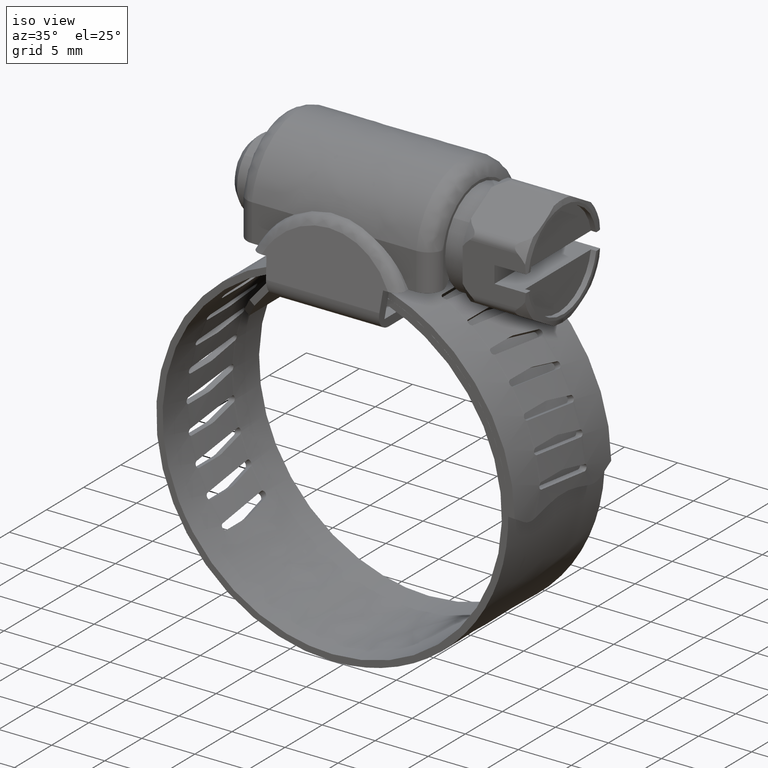
[diagram: clean part render]
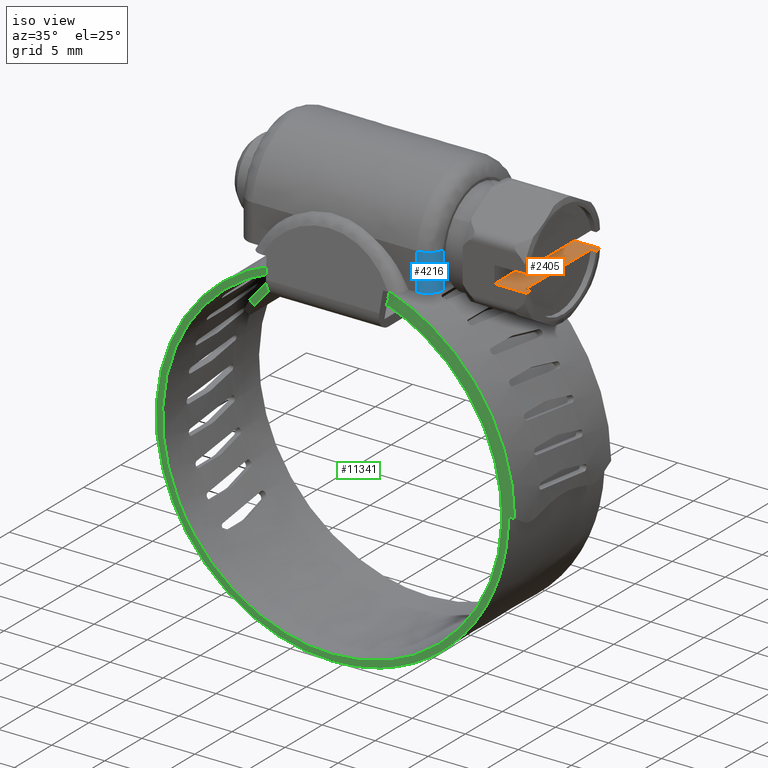
[diagram: same view with three faces highlighted in distinct colors, each labeled with its STEP entity id]
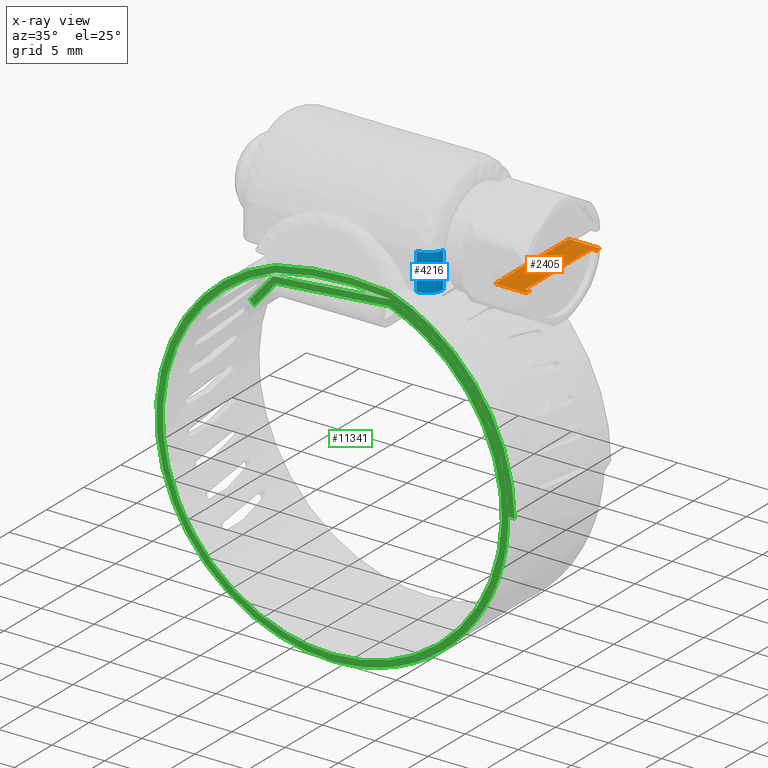
[diagram: x-ray of the same camera — body ghosted, the three highlighted faces saturated]
A machine part, iso view with three faces highlighted in distinct colors.
The next image is the same camera in x-ray (body ghosted, the three faces saturated) — at least one of them is partly hidden behind the body in this view.
Their STEP definitions:

[orange] entity #2405 — the highlighted face is a freeform B-spline surface patch.
#2063=CARTESIAN_POINT('',(17.206999503102100,5.0,15.027121000000200));
#2064=VERTEX_POINT('',#2063);
#2072=CARTESIAN_POINT('',(17.250000000000000,4.705992249096360,15.027121000000200));
#2073=VERTEX_POINT('',#2072);
#2074=CARTESIAN_POINT('',(17.206999503102100,5.0,15.027121000000200));
#2075=CARTESIAN_POINT('',(17.235509469103619,4.904777805722434,15.027121000000150));
#2076=CARTESIAN_POINT('',(17.250036306983880,4.805389500258055,15.027121000000230));
#2077=CARTESIAN_POINT('',(17.250000000000000,4.705992249096360,15.027121000000200));
#2078=B_SPLINE_CURVE_WITH_KNOTS('',3,(#2074,#2075,#2076,#2077),.UNSPECIFIED.,.F.,.U.,(4,4),(2.046325E-009,0.298189102501080),.UNSPECIFIED.);
#2079=EDGE_CURVE('',#2064,#2073,#2078,.T.);
#2081=CARTESIAN_POINT('',(17.250000000000000,-4.705992249096360,15.027121000000200));
#2082=VERTEX_POINT('',#2081);
#2106=CARTESIAN_POINT('',(17.206999503105251,-4.999999999989731,15.027121000000200));
#2107=VERTEX_POINT('',#2106);
#2108=CARTESIAN_POINT('',(17.250000000000000,-4.705992249096360,15.027121000000200));
#2109=CARTESIAN_POINT('',(17.250048921051491,-4.805390154629565,15.027121000000200));
#2110=CARTESIAN_POINT('',(17.235521455894119,-4.904780870387029,15.027121000000220));
#2111=CARTESIAN_POINT('',(17.206999503105251,-4.999999999989731,15.027121000000200));
#2112=B_SPLINE_CURVE_WITH_KNOTS('',3,(#2108,#2109,#2110,#2111),.UNSPECIFIED.,.F.,.U.,(4,4),(2.053393E-009,0.298190934497048),.UNSPECIFIED.);
#2113=EDGE_CURVE('',#2082,#2107,#2112,.T.);
#2285=CARTESIAN_POINT('',(16.750000000000000,-4.428317965096929,15.027121000000200));
#2286=VERTEX_POINT('',#2285);
#2287=CARTESIAN_POINT('',(17.250000000000000,-4.428317965096929,15.027121000000200));
#2288=VERTEX_POINT('',#2287);
#2289=CARTESIAN_POINT('',(16.750000000000000,-4.428317965096929,15.027121000000200));
#2290=CARTESIAN_POINT('',(17.250000000000000,-4.428317965096929,15.027121000000200));
#2291=QUASI_UNIFORM_CURVE('',1,(#2289,#2290),.UNSPECIFIED.,.F.,.U.);
#2292=EDGE_CURVE('',#2286,#2288,#2291,.T.);
#2294=CARTESIAN_POINT('',(17.250000000000000,4.428317965096929,15.027121000000200));
#2295=VERTEX_POINT('',#2294);
#2318=CARTESIAN_POINT('',(16.750000000000000,4.428317965096929,15.027121000000200));
#2319=VERTEX_POINT('',#2318);
#2320=CARTESIAN_POINT('',(17.250000000000000,4.428317965096929,15.027121000000200));
#2321=CARTESIAN_POINT('',(16.750000000000000,4.428317965096929,15.027121000000200));
#2322=QUASI_UNIFORM_CURVE('',1,(#2320,#2321),.UNSPECIFIED.,.F.,.U.);
#2323=EDGE_CURVE('',#2295,#2319,#2322,.T.);
#2356=CARTESIAN_POINT('',(16.750000000000000,-4.428317965096929,15.027121000000200));
#2357=CARTESIAN_POINT('',(16.750000000000000,4.428317965096929,15.027121000000200));
#2358=QUASI_UNIFORM_CURVE('',1,(#2356,#2357),.UNSPECIFIED.,.F.,.U.);
#2359=EDGE_CURVE('',#2286,#2319,#2358,.T.);
#2364=CARTESIAN_POINT('',(14.100150005814580,-5.499499980618060,15.027121000000200));
#2365=CARTESIAN_POINT('',(17.399850074651692,-5.499499980618060,15.027121000000200));
#2366=CARTESIAN_POINT('',(14.100150005814580,5.499500248838961,15.027121000000200));
#2367=CARTESIAN_POINT('',(17.399850074651692,5.499500248838961,15.027121000000200));
#2368=B_SPLINE_SURFACE_WITH_KNOTS('',1,1,((#2364,#2366),(#2365,#2367)),.UNSPECIFIED.,.F.,.F.,.U.,(2,2),(2,2),(0.0,3.299700068837110),(0.0,10.999000229457019),.UNSPECIFIED.);
#2369=ORIENTED_EDGE('',*,*,#2113,.F.);
#2370=CARTESIAN_POINT('',(17.250000000000000,-4.428317965096929,15.027121000000200));
#2371=CARTESIAN_POINT('',(17.250000000000000,-4.705992249096360,15.027121000000200));
#2372=QUASI_UNIFORM_CURVE('',1,(#2370,#2371),.UNSPECIFIED.,.F.,.U.);
#2373=EDGE_CURVE('',#2288,#2082,#2372,.T.);
#2374=ORIENTED_EDGE('',*,*,#2373,.F.);
#2375=ORIENTED_EDGE('',*,*,#2292,.F.);
#2376=ORIENTED_EDGE('',*,*,#2359,.T.);
#2377=ORIENTED_EDGE('',*,*,#2323,.F.);
#2378=CARTESIAN_POINT('',(17.250000000000000,4.705992249096360,15.027121000000200));
#2379=CARTESIAN_POINT('',(17.250000000000000,4.428317965096929,15.027121000000200));
#2380=QUASI_UNIFORM_CURVE('',1,(#2378,#2379),.UNSPECIFIED.,.F.,.U.);
#2381=EDGE_CURVE('',#2073,#2295,#2380,.T.);
#2382=ORIENTED_EDGE('',*,*,#2381,.F.);
#2383=ORIENTED_EDGE('',*,*,#2079,.F.);
#2384=CARTESIAN_POINT('',(14.250000000000000,5.0,15.027121000000200));
#2385=VERTEX_POINT('',#2384);
#2386=CARTESIAN_POINT('',(14.250000000000000,5.0,15.027121000000200));
#2387=CARTESIAN_POINT('',(17.206999503102100,5.0,15.027121000000200));
#2388=QUASI_UNIFORM_CURVE('',1,(#2386,#2387),.UNSPECIFIED.,.F.,.U.);
#2389=EDGE_CURVE('',#2385,#2064,#2388,.T.);
#2390=ORIENTED_EDGE('',*,*,#2389,.F.);
#2391=CARTESIAN_POINT('',(14.250000000000000,-5.0,15.027121000000200));
#2392=VERTEX_POINT('',#2391);
#2393=CARTESIAN_POINT('',(14.250000000000000,5.0,15.027121000000200));
#2394=CARTESIAN_POINT('',(14.250000000000000,-5.0,15.027121000000200));
#2395=QUASI_UNIFORM_CURVE('',1,(#2393,#2394),.UNSPECIFIED.,.F.,.U.);
#2396=EDGE_CURVE('',#2385,#2392,#2395,.T.);
#2397=ORIENTED_EDGE('',*,*,#2396,.T.);
#2398=CARTESIAN_POINT('',(14.250000000000000,-5.0,15.027121000000200));
#2399=CARTESIAN_POINT('',(17.206999503105251,-4.999999999989731,15.027121000000200));
#2400=QUASI_UNIFORM_CURVE('',1,(#2398,#2399),.UNSPECIFIED.,.F.,.U.);
#2401=EDGE_CURVE('',#2392,#2107,#2400,.T.);
#2402=ORIENTED_EDGE('',*,*,#2401,.T.);
#2403=EDGE_LOOP('',(#2369,#2374,#2375,#2376,#2377,#2382,#2383,#2390,#2397,#2402));
#2404=FACE_OUTER_BOUND('',#2403,.T.);
#2405=ADVANCED_FACE('',(#2404),#2368,.T.);

[blue] entity #4216 — the highlighted face is a freeform B-spline surface patch.
#4094=CARTESIAN_POINT('',(7.750000000000000,-6.249999633170980,16.577121365332999));
#4095=VERTEX_POINT('',#4094);
#4096=CARTESIAN_POINT('',(9.250000000000000,-4.750000000000000,16.474846138207202));
#4097=VERTEX_POINT('',#4096);
#4098=CARTESIAN_POINT('',(7.750000000000000,-6.249999633170980,16.577121365332999));
#4099=CARTESIAN_POINT('',(7.909730764666414,-6.249878331808185,16.577495060058379));
#4100=CARTESIAN_POINT('',(8.173783550736472,-6.207020607309248,16.575102217856710));
#4101=CARTESIAN_POINT('',(8.494594363132128,-6.062279308114920,16.565654605634421));
#4102=CARTESIAN_POINT('',(8.721257639045223,-5.902611492189811,16.554928223330101));
#4103=CARTESIAN_POINT('',(8.921592669599393,-5.702295459049872,16.541270020145120));
#4104=CARTESIAN_POINT('',(9.072406799178326,-5.476537966144156,16.525697734799660));
#4105=CARTESIAN_POINT('',(9.210373101187990,-5.154436138295711,16.503295044750210));
#4106=CARTESIAN_POINT('',(9.250316627832087,-4.915471599189417,16.486525323357281));
#4107=CARTESIAN_POINT('',(9.250000000000000,-4.750000000000000,16.474846138207202));
#4108=B_SPLINE_CURVE_WITH_KNOTS('',3,(#4098,#4099,#4100,#4101,#4102,#4103,#4104,#4105,#4106,#4107),.UNSPECIFIED.,.F.,.U.,(4,1,1,1,1,1,1,4),(0.000000052796059,0.479166655590116,0.792473659713101,1.050489125535329,1.308498353158782,1.640229492154335,1.861387593611156,2.358983874720540),.UNSPECIFIED.);
#4109=EDGE_CURVE('',#4095,#4097,#4108,.T.);
#4163=CARTESIAN_POINT('',(9.249485987463336,-4.710734577538190,12.989620990866880));
#4164=CARTESIAN_POINT('',(9.249485987463336,-4.710734577538190,16.666808874694649));
#4165=CARTESIAN_POINT('',(9.292738390249394,-6.362477200832084,12.989620990866879));
#4166=CARTESIAN_POINT('',(9.292738390249394,-6.362477200832084,16.666808874694649));
#4167=CARTESIAN_POINT('',(7.644519886561025,-6.246286719071219,12.989620990866880));
#4168=CARTESIAN_POINT('',(7.644519886561025,-6.246286719071219,16.666808874694656));
#4176=(BOUNDED_SURFACE()B_SPLINE_SURFACE(1,2,((#4163,#4165,#4167),(#4164,#4166,#4168)),.UNSPECIFIED.,.F.,.F.,.U.)B_SPLINE_SURFACE_WITH_KNOTS((2,2),(3,3),(0.0,3.677187883827772),(0.0,2.656713516132551),.UNSPECIFIED.)GEOMETRIC_REPRESENTATION_ITEM()RATIONAL_B_SPLINE_SURFACE(((1.0,0.670944223154768,0.996392648609106),(1.0,0.670944223154768,0.996392648609106)))REPRESENTATION_ITEM('')SURFACE());
#4177=CARTESIAN_POINT('',(9.250000000000000,-4.750000000000000,13.091078194673781));
#4178=VERTEX_POINT('',#4177);
#4179=CARTESIAN_POINT('',(9.240731502966250,-4.916492000000000,13.077121000000201));
#4180=VERTEX_POINT('',#4179);
#4181=CARTESIAN_POINT('',(9.250000000000000,-4.750000000000000,13.091078194673781));
#4182=CARTESIAN_POINT('',(9.250039077149744,-4.805093028401785,13.081784339118100));
#4183=CARTESIAN_POINT('',(9.246930418808336,-4.860964311131885,13.077098096389580));
#4184=CARTESIAN_POINT('',(9.240731502966250,-4.916492000000000,13.077121000000201));
#4185=B_SPLINE_CURVE_WITH_KNOTS('',3,(#4181,#4182,#4183,#4184),.UNSPECIFIED.,.F.,.U.,(4,4),(1.043656E-009,0.167619304962963),.UNSPECIFIED.);
#4186=EDGE_CURVE('',#4178,#4180,#4185,.T.);
#4187=ORIENTED_EDGE('',*,*,#4186,.F.);
#4188=CARTESIAN_POINT('',(9.250000000000000,-4.750000000000000,16.474846138207202));
#4189=CARTESIAN_POINT('',(9.250000000000000,-4.750000000000000,13.091078194673781));
#4190=QUASI_UNIFORM_CURVE('',1,(#4188,#4189),.UNSPECIFIED.,.F.,.U.);
#4191=EDGE_CURVE('',#4097,#4178,#4190,.T.);
#4192=ORIENTED_EDGE('',*,*,#4191,.F.);
#4193=ORIENTED_EDGE('',*,*,#4109,.F.);
#4194=CARTESIAN_POINT('',(7.750000000000000,-6.250000000000000,13.077121000000201));
#4195=VERTEX_POINT('',#4194);
#4196=CARTESIAN_POINT('',(7.750000000000000,-6.250000000000000,13.077121000000201));
#4197=CARTESIAN_POINT('',(7.750000000000000,-6.249999633170980,16.577121365332999));
#4198=QUASI_UNIFORM_CURVE('',1,(#4196,#4197),.UNSPECIFIED.,.F.,.U.);
#4199=EDGE_CURVE('',#4195,#4095,#4198,.T.);
#4200=ORIENTED_EDGE('',*,*,#4199,.F.);
#4201=CARTESIAN_POINT('',(9.240731502966250,-4.916492000000000,13.077121000000201));
#4202=CARTESIAN_POINT('',(9.225594366164010,-5.052491477255182,13.077121000000210));
#4203=CARTESIAN_POINT('',(9.167578751079796,-5.281197162874862,13.077121000000190));
#4204=CARTESIAN_POINT('',(9.018921830564453,-5.565461022294991,13.077121000000179));
#4205=CARTESIAN_POINT('',(8.849591927735498,-5.781729370915818,13.077121000000220));
#4206=CARTESIAN_POINT('',(8.661837392564603,-5.949676024676418,13.077121000000190));
#4207=CARTESIAN_POINT('',(8.434814690697916,-6.093421267172399,13.077121000000201));
#4208=CARTESIAN_POINT('',(8.137674979258312,-6.214785392311871,13.077121000000210));
#4209=CARTESIAN_POINT('',(7.892541274488667,-6.250055119327778,13.077121000000201));
#4210=CARTESIAN_POINT('',(7.750000000000000,-6.250000000000000,13.077121000000201));
#4211=B_SPLINE_CURVE_WITH_KNOTS('',3,(#4201,#4202,#4203,#4204,#4205,#4206,#4207,#4208,#4209,#4210),.UNSPECIFIED.,.F.,.U.,(4,1,1,1,1,1,1,4),(0.000000044337971,0.410503455625873,0.701283733955715,0.957857635291427,1.231513497130508,1.453876334453422,1.761760267115205,2.189370583337010),.UNSPECIFIED.);
#4212=EDGE_CURVE('',#4180,#4195,#4211,.T.);
#4213=ORIENTED_EDGE('',*,*,#4212,.F.);
#4214=EDGE_LOOP('',(#4187,#4192,#4193,#4200,#4213));
#4215=FACE_OUTER_BOUND('',#4214,.T.);
#4216=ADVANCED_FACE('',(#4215),#4176,.T.);

[green] entity #11341 — the highlighted face is a freeform B-spline surface patch.
#8328=CARTESIAN_POINT('',(-7.791181798298579,-6.500000000000000,8.347631388852189));
#8329=VERTEX_POINT('',#8328);
#8342=CARTESIAN_POINT('',(-7.334361413863970,-6.500000000000250,7.958639061498129));
#8343=VERTEX_POINT('',#8342);
#8349=CARTESIAN_POINT('',(-7.791181798298579,-6.500000000000000,8.347631388852189));
#8350=CARTESIAN_POINT('',(-7.334361413863970,-6.500000000000250,7.958639061498129));
#8351=QUASI_UNIFORM_CURVE('',1,(#8349,#8350),.UNSPECIFIED.,.F.,.U.);
#8352=EDGE_CURVE('',#8329,#8343,#8351,.T.);
#8376=CARTESIAN_POINT('',(-5.572247165430700,-6.500000000000000,10.953473794129900));
#8377=VERTEX_POINT('',#8376);
#8378=CARTESIAN_POINT('',(-5.572247165430700,-6.500000000000000,10.953473794129900));
#8379=CARTESIAN_POINT('',(-7.791181798298579,-6.500000000000000,8.347631388852189));
#8380=QUASI_UNIFORM_CURVE('',1,(#8378,#8379),.UNSPECIFIED.,.F.,.U.);
#8381=EDGE_CURVE('',#8377,#8329,#8380,.T.);
#8396=CARTESIAN_POINT('',(5.428691733681980,-6.500000000000000,11.911233856249240));
#8397=VERTEX_POINT('',#8396);
#8398=CARTESIAN_POINT('',(5.428691733681980,-6.500000000000000,11.911233856249240));
#8399=CARTESIAN_POINT('',(-5.572247165430700,-6.500000000000000,10.953473794129900));
#8400=QUASI_UNIFORM_CURVE('',1,(#8398,#8399),.UNSPECIFIED.,.F.,.U.);
#8401=EDGE_CURVE('',#8397,#8377,#8400,.T.);
#8445=CARTESIAN_POINT('',(-0.013288823278815,-6.500000000000000,-20.375994680938181));
#8446=VERTEX_POINT('',#8445);
#8447=CARTESIAN_POINT('',(-0.013288823278815,-6.500000000000000,-20.375994680938181));
#8448=CARTESIAN_POINT('',(0.806431367803265,-6.500000000000004,-20.376693983167829));
#8449=CARTESIAN_POINT('',(2.233426539291146,-6.499999999999998,-20.271876379137701));
#8450=CARTESIAN_POINT('',(4.378054711637666,-6.500000000000004,-19.832213544916272));
#8451=CARTESIAN_POINT('',(6.194485005057371,-6.500000000000004,-19.218837664334099));
#8452=CARTESIAN_POINT('',(7.759397835748891,-6.499999999999997,-18.475113068337158));
#8453=CARTESIAN_POINT('',(9.304784938885675,-6.500000000000007,-17.566752882438038));
#8454=CARTESIAN_POINT('',(10.789986873649640,-6.499999999999916,-16.451925336573929));
#8455=CARTESIAN_POINT('',(12.292008953255880,-6.499999999999932,-14.987135356127499));
#8456=CARTESIAN_POINT('',(13.520162398128271,-6.500000000000343,-13.476876655412759));
#8457=CARTESIAN_POINT('',(14.622352273293970,-6.499999999999750,-11.726765338134120));
#8458=CARTESIAN_POINT('',(15.457258006659680,-6.500000000000120,-9.933941146299908));
#8459=CARTESIAN_POINT('',(16.112868991961371,-6.500000000000084,-7.941325783754777));
#8460=CARTESIAN_POINT('',(16.559837193321670,-6.499999999999957,-5.671671735344448));
#8461=CARTESIAN_POINT('',(16.639800223342451,-6.500000000000073,-3.570760533964450));
#8462=CARTESIAN_POINT('',(16.489350744930661,-6.499999999999924,-1.693422271203688));
#8463=CARTESIAN_POINT('',(16.194854989567911,-6.500000000000448,0.075929581194763));
#8464=CARTESIAN_POINT('',(15.639109317255031,-6.499999999999440,1.912002790568331));
#8465=CARTESIAN_POINT('',(14.867807845445460,-6.500000000000371,3.664311765782506));
#8466=CARTESIAN_POINT('',(13.991199101996861,-6.499999999999826,5.229204023845340));
#8467=CARTESIAN_POINT('',(12.917727080458089,-6.499999999999996,6.705806046635198));
#8468=CARTESIAN_POINT('',(11.727654913601301,-6.499999999999970,8.006281777172553));
#8469=CARTESIAN_POINT('',(10.331604710557540,-6.500000000000121,9.271972541471293));
#8470=CARTESIAN_POINT('',(8.289337180077407,-6.499999999999846,10.708490960726440));
#8471=CARTESIAN_POINT('',(6.490304881145353,-6.499999999999777,11.544013987446920));
#8472=CARTESIAN_POINT('',(5.428691733681980,-6.500000000000000,11.911233856249240));
#8473=B_SPLINE_CURVE_WITH_KNOTS('',3,(#8447,#8448,#8449,#8450,#8451,#8452,#8453,#8454,#8455,#8456,#8457,#8458,#8459,#8460,#8461,#8462,#8463,#8464,#8465,#8466,#8467,#8468,#8469,#8470,#8471,#8472),.UNSPECIFIED.,.F.,.U.,(4,1,1,1,1,1,1,1,1,1,1,1,1,1,1,1,1,1,1,1,1,1,1,4),(0.000000023376131,2.459158380666885,4.280777629463522,6.557814906029797,8.197259746065591,9.472397940618698,11.931581747682650,13.753199400331381,15.756981716544850,17.760753710808419,19.946705124044851,21.677238096110401,24.045308689251129,26.868818613411690,27.961791121988401,29.692314471448011,32.242585574857621,33.699881434668669,35.430419455720262,37.616360522943062,39.164739888885492,40.713116193422962,43.263382482265669,46.633351800454129),.UNSPECIFIED.);
#8474=EDGE_CURVE('',#8446,#8397,#8473,.T.);
#8476=CARTESIAN_POINT('',(-5.403568536057810,-6.500000000000000,11.919905432693740));
#8477=VERTEX_POINT('',#8476);
#8478=CARTESIAN_POINT('',(-5.403568536057810,-6.500000000000000,11.919905432693740));
#8479=CARTESIAN_POINT('',(-6.035115718634340,-6.499999999999989,11.702501730989590));
#8480=CARTESIAN_POINT('',(-7.356251747863360,-6.500000000000004,11.156476872160971));
#8481=CARTESIAN_POINT('',(-9.256798365550859,-6.500000000000004,10.066172607384971));
#8482=CARTESIAN_POINT('',(-10.966313753431500,-6.499999999999989,8.744811107025498));
#8483=CARTESIAN_POINT('',(-12.301093371323740,-6.500000000000044,7.413139469327751));
#8484=CARTESIAN_POINT('',(-13.416335895158230,-6.500000000000008,6.048236911621512));
#8485=CARTESIAN_POINT('',(-14.388223821997350,-6.499999999999916,4.576336163049805));
#8486=CARTESIAN_POINT('',(-15.115777700032689,-6.500000000000019,3.138124818919907));
#8487=CARTESIAN_POINT('',(-15.713726945869681,-6.499999999999930,1.643467278052422));
#8488=CARTESIAN_POINT('',(-16.099898394798171,-6.499999999999764,0.362339750846856));
#8489=CARTESIAN_POINT('',(-16.423270304070702,-6.499999999999915,-1.214818469182103));
#8490=CARTESIAN_POINT('',(-16.617745289809509,-6.500000000000068,-2.906415811022940));
#8491=CARTESIAN_POINT('',(-16.605550491049041,-6.499999999999973,-4.853639050636892));
#8492=CARTESIAN_POINT('',(-16.386057033032181,-6.500000000000333,-6.572812909122177));
#8493=CARTESIAN_POINT('',(-16.038612212973479,-6.499999999999957,-8.144980053231299));
#8494=CARTESIAN_POINT('',(-15.503958618312950,-6.500000000000004,-9.825531892141592));
#8495=CARTESIAN_POINT('',(-14.689416708443540,-6.500000000000001,-11.594650624427519));
#8496=CARTESIAN_POINT('',(-13.764438379994020,-6.499999999999997,-13.095857495227040));
#8497=CARTESIAN_POINT('',(-12.835681343971689,-6.500000000000006,-14.336182407994810));
#8498=CARTESIAN_POINT('',(-11.598482600795410,-6.499999999999999,-15.717327511660390));
#8499=CARTESIAN_POINT('',(-10.006616258601030,-6.500000000000004,-17.089265590925290));
#8500=CARTESIAN_POINT('',(-8.139000261824808,-6.499999999999994,-18.290079705499920));
#8501=CARTESIAN_POINT('',(-6.496307109234742,-6.500000000000035,-19.085024486952442));
#8502=CARTESIAN_POINT('',(-4.809868689667819,-6.500000000000028,-19.693877502433558));
#8503=CARTESIAN_POINT('',(-2.715181965251238,-6.499999999999833,-20.217563928457849));
#8504=CARTESIAN_POINT('',(-1.045541048125247,-6.499999999999994,-20.375275074392469));
#8505=CARTESIAN_POINT('',(-0.013288823278815,-6.500000000000000,-20.375994680938181));
#8506=B_SPLINE_CURVE_WITH_KNOTS('',3,(#8478,#8479,#8480,#8481,#8482,#8483,#8484,#8485,#8486,#8487,#8488,#8489,#8490,#8491,#8492,#8493,#8494,#8495,#8496,#8497,#8498,#8499,#8500,#8501,#8502,#8503,#8504,#8505),.UNSPECIFIED.,.F.,.U.,(4,1,1,1,1,1,1,1,1,1,1,1,1,1,1,1,1,1,1,1,1,1,1,1,1,4),(0.000000023502757,2.003759568769411,4.280777629892050,6.557814906617693,8.470510855706301,9.927803084700898,11.840500513877510,13.753199401426290,14.755090884607050,16.667781735637739,17.760753712184460,19.582377517841270,21.768324770029050,23.589894793816999,24.773952498007450,26.595562161928228,28.872591095161390,30.603125920775600,31.878267851984209,33.517717666214153,36.159065329592408,38.162848643233907,40.166629592341501,41.623913405553331,43.536615741167083,46.633351803859057),.UNSPECIFIED.);
#8507=EDGE_CURVE('',#8477,#8446,#8506,.T.);
#8718=CARTESIAN_POINT('',(-5.352101093344970,-6.500000000000000,11.302296120139520));
#8719=VERTEX_POINT('',#8718);
#8720=CARTESIAN_POINT('',(0.0,-6.500000000000000,-19.776000000000000));
#8721=VERTEX_POINT('',#8720);
#8722=CARTESIAN_POINT('',(-5.352101093344970,-6.500000000000000,11.302296120139520));
#8723=CARTESIAN_POINT('',(-5.929424791556444,-6.500000000000009,11.097382155994120));
#8724=CARTESIAN_POINT('',(-7.168227186440058,-6.499999999999984,10.575799575018470));
#8725=CARTESIAN_POINT('',(-8.712272233238043,-6.500000000000027,9.682864504258939));
#8726=CARTESIAN_POINT('',(-10.218032322603580,-6.499999999999978,8.576388457809779));
#8727=CARTESIAN_POINT('',(-11.577695403569180,-6.500000000000009,7.333997423096987));
#8728=CARTESIAN_POINT('',(-12.932349698032199,-6.499999999999963,5.722918482421022));
#8729=CARTESIAN_POINT('',(-14.017270140231631,-6.500000000000274,4.022304852633416));
#8730=CARTESIAN_POINT('',(-14.960293389737011,-6.499999999999838,2.044053191644261));
#8731=CARTESIAN_POINT('',(-15.593786497072999,-6.500000000000068,0.034067716343611));
#8732=CARTESIAN_POINT('',(-15.970033401778670,-6.499999999999979,-2.213843637664072));
#8733=CARTESIAN_POINT('',(-16.049983362415048,-6.500000000000014,-4.523334556739194));
#8734=CARTESIAN_POINT('',(-15.792774099024159,-6.500000000000106,-6.586012435785144));
#8735=CARTESIAN_POINT('',(-15.347749186658520,-6.500000000000040,-8.370343904488413));
#8736=CARTESIAN_POINT('',(-14.738686772835520,-6.499999999999641,-10.137890910203170));
#8737=CARTESIAN_POINT('',(-13.728011032208910,-6.500000000000930,-12.120743897849410));
#8738=CARTESIAN_POINT('',(-12.354990452654240,-6.499999999998517,-14.014635870844669));
#8739=CARTESIAN_POINT('',(-10.786741528731870,-6.500000000001452,-15.669528693638149));
#8740=CARTESIAN_POINT('',(-8.993417489815519,-6.499999999999435,-17.082486050522508));
#8741=CARTESIAN_POINT('',(-7.036017756529255,-6.500000000000100,-18.195090628023191));
#8742=CARTESIAN_POINT('',(-5.331951662419620,-6.499999999999901,-18.892257606160811));
#8743=CARTESIAN_POINT('',(-3.734421625085407,-6.500000000000301,-19.359295166003360));
#8744=CARTESIAN_POINT('',(-2.012856404600842,-6.499999999998953,-19.688081439790651));
#8745=CARTESIAN_POINT('',(-0.729298582617302,-6.500000000001378,-19.776033524202031));
#8746=CARTESIAN_POINT('',(0.0,-6.500000000000000,-19.776000000000000));
#8747=B_SPLINE_CURVE_WITH_KNOTS('',3,(#8722,#8723,#8724,#8725,#8726,#8727,#8728,#8729,#8730,#8731,#8732,#8733,#8734,#8735,#8736,#8737,#8738,#8739,#8740,#8741,#8742,#8743,#8744,#8745,#8746),.UNSPECIFIED.,.F.,.U.,(4,1,1,1,1,1,1,1,1,1,1,1,1,1,1,1,1,1,1,1,1,1,4),(0.000000026866168,1.837837051901673,4.025735086334549,5.338480163086764,7.438865092305505,9.539253415474668,11.639640778282160,13.477484270934120,16.102969155673289,17.940804487846322,20.303742893889499,23.016718576915721,24.154418209448309,25.817229053043949,28.617750270186889,30.805661342093440,32.818531726640877,35.444016457397282,37.631920519533381,39.557283275549572,40.957532328192897,42.620343602926319,44.808237162283120),.UNSPECIFIED.);
#8748=EDGE_CURVE('',#8719,#8721,#8747,.T.);
#8750=CARTESIAN_POINT('',(5.352101093344911,-6.500000000000000,11.302296120139539));
#8751=VERTEX_POINT('',#8750);
#8752=CARTESIAN_POINT('',(0.0,-6.500000000000000,-19.776000000000000));
#8753=CARTESIAN_POINT('',(1.050202883344756,-6.500000000000001,-19.776139730428049));
#8754=CARTESIAN_POINT('',(2.683772727234335,-6.500000000000031,-19.614555208774949));
#8755=CARTESIAN_POINT('',(4.805949988051712,-6.499999999999950,-19.068992151172878));
#8756=CARTESIAN_POINT('',(6.255845907723887,-6.500000000000084,-18.526104866637748));
#8757=CARTESIAN_POINT('',(7.781603143379713,-6.499999999999788,-17.791893579140581));
#8758=CARTESIAN_POINT('',(9.148262843154686,-6.500000000000461,-16.944205330740491));
#8759=CARTESIAN_POINT('',(10.639122608427041,-6.499999999999327,-15.769573362965909));
#8760=CARTESIAN_POINT('',(12.098751739819511,-6.500000000000564,-14.335197591507290));
#8761=CARTESIAN_POINT('',(13.526791686621911,-6.499999999999629,-12.442616484178920));
#8762=CARTESIAN_POINT('',(14.560264646612850,-6.500000000000103,-10.507411048204180));
#8763=CARTESIAN_POINT('',(15.263233554479781,-6.500000000000104,-8.681129101754484));
#8764=CARTESIAN_POINT('',(15.718191265331500,-6.499999999999520,-6.957450927440933));
#8765=CARTESIAN_POINT('',(15.988180709091839,-6.500000000000534,-5.047924983983788));
#8766=CARTESIAN_POINT('',(16.020519071336150,-6.499999999999806,-3.440630457801154));
#8767=CARTESIAN_POINT('',(15.903661854364881,-6.500000000000106,-1.839702084243836));
#8768=CARTESIAN_POINT('',(15.684349275401861,-6.499999999999882,-0.483978898282152));
#8769=CARTESIAN_POINT('',(15.228502425212801,-6.499999999999806,1.237694253686152));
#8770=CARTESIAN_POINT('',(14.491767133654109,-6.500000000000750,3.147325144757291));
#8771=CARTESIAN_POINT('',(13.287499190251420,-6.499999999999659,5.257290305898560));
#8772=CARTESIAN_POINT('',(11.930676582447450,-6.500000000000121,6.944460017193021));
#8773=CARTESIAN_POINT('',(10.446905434101129,-6.499999999999704,8.392417194353314));
#8774=CARTESIAN_POINT('',(8.823822119515427,-6.500000000000821,9.640744220878720));
#8775=CARTESIAN_POINT('',(7.009116825305145,-6.499999999998788,10.650789934631851));
#8776=CARTESIAN_POINT('',(5.819455542162798,-6.500000000000895,11.136406531681381));
#8777=CARTESIAN_POINT('',(5.352101093344911,-6.500000000000000,11.302296120139539));
#8778=B_SPLINE_CURVE_WITH_KNOTS('',3,(#8752,#8753,#8754,#8755,#8756,#8757,#8758,#8759,#8760,#8761,#8762,#8763,#8764,#8765,#8766,#8767,#8768,#8769,#8770,#8771,#8772,#8773,#8774,#8775,#8776,#8777),.UNSPECIFIED.,.F.,.U.,(4,1,1,1,1,1,1,1,1,1,1,1,1,1,1,1,1,1,1,1,1,1,1,4),(0.000000026811122,3.150573372794881,4.900898175413119,6.563700341503761,7.788925123419148,9.976834758524461,11.377092921963170,13.477484270898890,16.102969155641311,18.465901175474670,20.041204892951910,21.966564984268299,23.804367839393940,25.817229053023091,26.779906593508560,28.617750270169161,29.930497030985411,32.118403149401729,34.743890600857263,37.194340352662991,38.594603416089697,40.957532328189110,43.320464119992678,44.808237162283277),.UNSPECIFIED.);
#8779=EDGE_CURVE('',#8721,#8751,#8778,.T.);
#8972=CARTESIAN_POINT('',(-5.275000000000000,-6.500000000000000,10.377083000000200));
#8973=VERTEX_POINT('',#8972);
#8974=CARTESIAN_POINT('',(-5.275000000000000,-6.500000000000000,10.377083000000200));
#8975=CARTESIAN_POINT('',(5.352101093344911,-6.500000000000000,11.302296120139539));
#8976=QUASI_UNIFORM_CURVE('',1,(#8974,#8975),.UNSPECIFIED.,.F.,.U.);
#8977=EDGE_CURVE('',#8973,#8751,#8976,.T.);
#9012=CARTESIAN_POINT('',(-7.334361413863970,-6.500000000000250,7.958639061498129));
#9013=CARTESIAN_POINT('',(-5.275000000000000,-6.500000000000000,10.377083000000200));
#9014=QUASI_UNIFORM_CURVE('',1,(#9012,#9013),.UNSPECIFIED.,.F.,.U.);
#9015=EDGE_CURVE('',#8343,#8973,#9014,.T.);
#11146=CARTESIAN_POINT('',(16.609231918422999,-6.500000000000000,-3.616265595307415));
#11147=VERTEX_POINT('',#11146);
#11162=CARTESIAN_POINT('',(17.209567224353851,-6.500000000000000,-3.653951032592220));
#11163=VERTEX_POINT('',#11162);
#11177=CARTESIAN_POINT('',(16.609231918422999,-6.500000000000000,-3.616265595307415));
#11178=CARTESIAN_POINT('',(17.209567224353851,-6.500000000000000,-3.653951032592220));
#11179=QUASI_UNIFORM_CURVE('',1,(#11177,#11178),.UNSPECIFIED.,.F.,.U.);
#11180=EDGE_CURVE('',#11147,#11163,#11179,.T.);
#11269=CARTESIAN_POINT('',(-18.284600989399621,-6.500000000000000,14.443189660496110));
#11270=CARTESIAN_POINT('',(18.898156765524799,-6.500000000000000,14.443189660496110));
#11271=CARTESIAN_POINT('',(-18.284600989399621,-6.500000000000000,-22.032470245057649));
#11272=CARTESIAN_POINT('',(18.898156765524799,-6.500000000000000,-22.032470245057649));
#11273=B_SPLINE_SURFACE_WITH_KNOTS('',1,1,((#11269,#11271),(#11270,#11272)),.UNSPECIFIED.,.F.,.F.,.U.,(2,2),(2,2),(0.0,37.182757754924417),(0.0,36.475659905553762),.UNSPECIFIED.);
#11274=ORIENTED_EDGE('',*,*,#8381,.T.);
#11275=ORIENTED_EDGE('',*,*,#8352,.T.);
#11276=ORIENTED_EDGE('',*,*,#9015,.T.);
#11277=ORIENTED_EDGE('',*,*,#8977,.T.);
#11278=ORIENTED_EDGE('',*,*,#8779,.F.);
#11279=ORIENTED_EDGE('',*,*,#8748,.F.);
#11280=CARTESIAN_POINT('',(5.267799851517740,-6.500000000000000,11.976535818856220));
#11281=VERTEX_POINT('',#11280);
#11282=CARTESIAN_POINT('',(5.267799851517740,-6.500000000000000,11.976535818856220));
#11283=CARTESIAN_POINT('',(4.437877266898934,-6.500000000000026,12.078194816365320));
#11284=CARTESIAN_POINT('',(2.630139421730218,-6.499999999999943,12.220307387773330));
#11285=CARTESIAN_POINT('',(0.202560808977237,-6.500000000000021,12.182343902359310));
#11286=CARTESIAN_POINT('',(-2.517021894400335,-6.500000000000002,11.914578036606191));
#11287=CARTESIAN_POINT('',(-4.244554119276375,-6.499999999999951,11.583577252512450));
#11288=CARTESIAN_POINT('',(-5.352101093344970,-6.500000000000000,11.302296120139520));
#11289=B_SPLINE_CURVE_WITH_KNOTS('',3,(#11282,#11283,#11284,#11285,#11286,#11287,#11288),.UNSPECIFIED.,.F.,.U.,(4,1,1,1,4),(7.703846E-010,2.508378323843807,5.434815796262045,7.274297271280947,10.702414809692041),.UNSPECIFIED.);
#11290=EDGE_CURVE('',#11281,#8719,#11289,.T.);
#11291=ORIENTED_EDGE('',*,*,#11290,.F.);
#11292=CARTESIAN_POINT('',(16.609231918422999,-6.500000000000000,-3.616265595307415));
#11293=CARTESIAN_POINT('',(16.602048792845970,-6.499999999999995,-2.866321219281732));
#11294=CARTESIAN_POINT('',(16.481694772574780,-6.500000000000008,-1.313886970416263));
#11295=CARTESIAN_POINT('',(15.959863734795190,-6.500000000000011,1.046108093822750));
#11296=CARTESIAN_POINT('',(15.100539822003650,-6.500000000000004,3.277368761205267));
#11297=CARTESIAN_POINT('',(14.064718287019399,-6.499999999999989,5.127688922105777));
#11298=CARTESIAN_POINT('',(12.983575684725110,-6.499999999999933,6.629292031331307));
#11299=CARTESIAN_POINT('',(11.613081470487611,-6.500000000000040,8.174445065089264));
#11300=CARTESIAN_POINT('',(9.876324400408201,-6.500000000000006,9.659163771000360));
#11301=CARTESIAN_POINT('',(7.662967099910826,-6.499999999999958,11.031190167139879));
#11302=CARTESIAN_POINT('',(6.131494345816992,-6.500000000000074,11.687773225943809));
#11303=CARTESIAN_POINT('',(5.267799851517740,-6.500000000000000,11.976535818856220));
#11304=B_SPLINE_CURVE_WITH_KNOTS('',3,(#11292,#11293,#11294,#11295,#11296,#11297,#11298,#11299,#11300,#11301,#11302,#11303),.UNSPECIFIED.,.F.,.U.,(4,1,1,1,1,1,1,1,1,4),(0.000000011287426,2.249936014841598,4.660581661552683,7.231945076669991,9.401522382042767,11.008606128324709,12.776418312920690,15.588846940945920,17.838789873430020,20.570848944171441),.UNSPECIFIED.);
#11305=EDGE_CURVE('',#11147,#11281,#11304,.T.);
#11306=ORIENTED_EDGE('',*,*,#11305,.F.);
#11307=ORIENTED_EDGE('',*,*,#11180,.T.);
#11308=CARTESIAN_POINT('',(5.458087624600850,-6.500000000000000,12.545561796659600));
#11309=VERTEX_POINT('',#11308);
#11310=CARTESIAN_POINT('',(17.209567224353851,-6.500000000000000,-3.653951032592220));
#11311=CARTESIAN_POINT('',(17.202754133882831,-6.500000000000020,-2.680652732674488));
#11312=CARTESIAN_POINT('',(17.064264282478138,-6.499999999999973,-1.179939920033341));
#11313=CARTESIAN_POINT('',(16.609032379013719,-6.500000000000024,0.829189123140751));
#11314=CARTESIAN_POINT('',(16.070404589526149,-6.499999999999970,2.469194730784600));
#11315=CARTESIAN_POINT('',(15.363802667895330,-6.500000000000013,4.044854107334624));
#11316=CARTESIAN_POINT('',(14.501155382839141,-6.500000000000002,5.539806865740751));
#11317=CARTESIAN_POINT('',(13.468900822912170,-6.500000000000009,6.992223882788111));
#11318=CARTESIAN_POINT('',(12.265370523297211,-6.499999999999990,8.345333748860089));
#11319=CARTESIAN_POINT('',(11.025854511994259,-6.500000000000026,9.465239217164168));
#11320=CARTESIAN_POINT('',(9.519408993985739,-6.499999999999850,10.610373756893500));
#11321=CARTESIAN_POINT('',(7.717908896985968,-6.500000000000007,11.674576606543830));
#11322=CARTESIAN_POINT('',(6.170175499441535,-6.500000000000058,12.307450439671870));
#11323=CARTESIAN_POINT('',(5.458087624600850,-6.500000000000000,12.545561796659600));
#11324=B_SPLINE_CURVE_WITH_KNOTS('',3,(#11310,#11311,#11312,#11313,#11314,#11315,#11316,#11317,#11318,#11319,#11320,#11321,#11322,#11323),.UNSPECIFIED.,.F.,.U.,(4,1,1,1,1,1,1,1,1,1,1,4),(0.000000010903126,2.919948038591627,4.505070952009724,6.173619177496391,8.092447257821821,9.677565680463619,11.346107493077060,13.431785052294551,15.100337102574850,16.351746724786810,19.104847544005690,21.357383117562819),.UNSPECIFIED.);
#11325=EDGE_CURVE('',#11163,#11309,#11324,.T.);
#11326=ORIENTED_EDGE('',*,*,#11325,.T.);
#11327=CARTESIAN_POINT('',(5.458087624600850,-6.500000000000000,12.545561796659600));
#11328=CARTESIAN_POINT('',(4.610216975979288,-6.499999999999996,12.654760584839160));
#11329=CARTESIAN_POINT('',(2.620759330899945,-6.500000000000020,12.823429481714991));
#11330=CARTESIAN_POINT('',(-1.032321424163795,-6.499999999999965,12.761604190884720));
#11331=CARTESIAN_POINT('',(-3.799456012548403,-6.500000000000034,12.317974067896021));
#11332=CARTESIAN_POINT('',(-5.403568536057810,-6.500000000000000,11.919905432693740));
#11333=B_SPLINE_CURVE_WITH_KNOTS('',3,(#11327,#11328,#11329,#11330,#11331,#11332),.UNSPECIFIED.,.F.,.U.,(4,1,1,4),(7.465335E-010,2.564623005240215,5.984117382749651,10.942392432663540),.UNSPECIFIED.);
#11334=EDGE_CURVE('',#11309,#8477,#11333,.T.);
#11335=ORIENTED_EDGE('',*,*,#11334,.T.);
#11336=ORIENTED_EDGE('',*,*,#8507,.T.);
#11337=ORIENTED_EDGE('',*,*,#8474,.T.);
#11338=ORIENTED_EDGE('',*,*,#8401,.T.);
#11339=EDGE_LOOP('',(#11274,#11275,#11276,#11277,#11278,#11279,#11291,#11306,#11307,#11326,#11335,#11336,#11337,#11338));
#11340=FACE_OUTER_BOUND('',#11339,.T.);
#11341=ADVANCED_FACE('',(#11340),#11273,.F.);